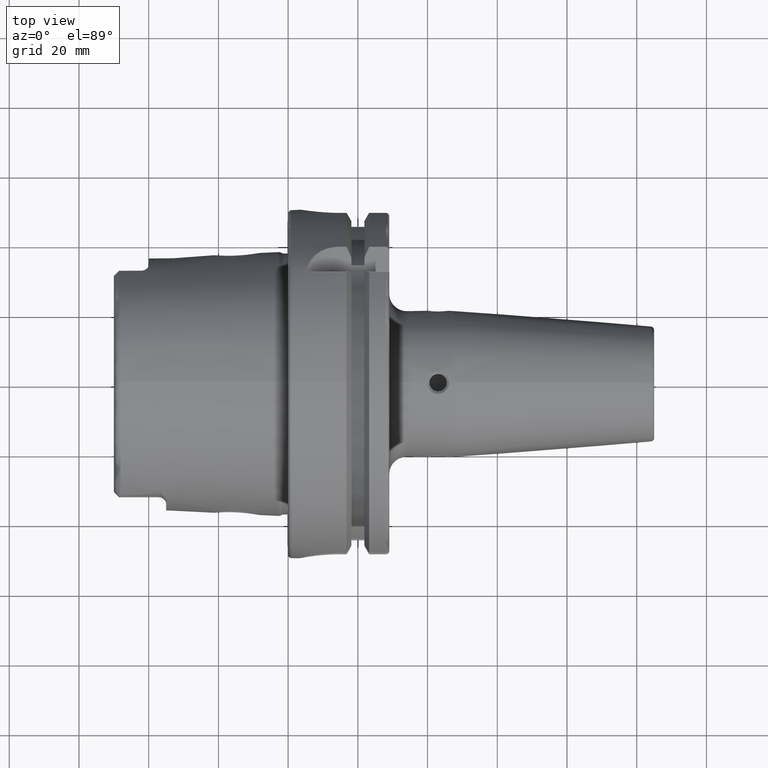
[diagram: clean part render]
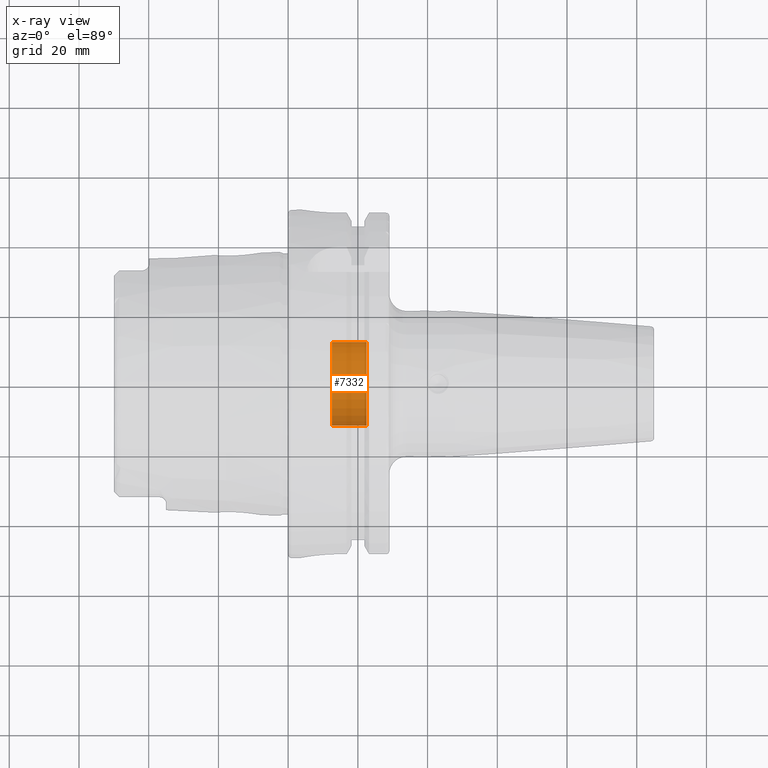
[diagram: x-ray — body ghosted, one internal face saturated and labeled with its STEP entity id]
A machine part, top view, then the same camera in x-ray: the body is ghosted and one INTERNAL B-rep face — a face not visible from any outside direction — is saturated and labeled: STEP entity #7332.
In plain terms, the highlighted cylindrical surface (partial cylindrical patch) has radius 12 mm, axis along (-1, 0, 0).
Its self-contained STEP definition (entity closure, byte-faithful):
#7281=CARTESIAN_POINT('',(1.25E1,0.E0,0.E0));
#7282=DIRECTION('',(1.E0,0.E0,0.E0));
#7283=DIRECTION('',(0.E0,-1.E0,0.E0));
#7284=AXIS2_PLACEMENT_3D('',#7281,#7282,#7283);
#7286=DIRECTION('',(-1.E0,0.E0,0.E0));
#7287=VECTOR('',#7286,1.E1);
#7288=CARTESIAN_POINT('',(2.25E1,-1.2E1,0.E0));
#7289=LINE('',#7288,#7287);
#7295=DIRECTION('',(-1.E0,0.E0,0.E0));
#7296=VECTOR('',#7295,1.E1);
#7297=CARTESIAN_POINT('',(2.25E1,1.2E1,0.E0));
#7298=LINE('',#7297,#7296);
#7304=CARTESIAN_POINT('',(2.25E1,0.E0,0.E0));
#7305=DIRECTION('',(1.E0,0.E0,0.E0));
#7306=DIRECTION('',(0.E0,-1.E0,0.E0));
#7307=AXIS2_PLACEMENT_3D('',#7304,#7305,#7306);
#7309=CARTESIAN_POINT('',(1.25E1,-1.2E1,0.E0));
#7310=CARTESIAN_POINT('',(1.25E1,1.2E1,0.E0));
#7311=VERTEX_POINT('',#7309);
#7312=VERTEX_POINT('',#7310);
#7313=CARTESIAN_POINT('',(2.25E1,1.2E1,0.E0));
#7314=VERTEX_POINT('',#7313);
#7315=CARTESIAN_POINT('',(2.25E1,-1.2E1,0.E0));
#7316=VERTEX_POINT('',#7315);
#7317=CARTESIAN_POINT('',(2.3E1,0.E0,0.E0));
#7318=DIRECTION('',(-1.E0,0.E0,0.E0));
#7319=DIRECTION('',(0.E0,1.E0,0.E0));
#7320=AXIS2_PLACEMENT_3D('',#7317,#7318,#7319);
#7321=CYLINDRICAL_SURFACE('',#7320,1.2E1);
#7323=ORIENTED_EDGE('',*,*,#7322,.T.);
#7325=ORIENTED_EDGE('',*,*,#7324,.F.);
#7327=ORIENTED_EDGE('',*,*,#7326,.F.);
#7329=ORIENTED_EDGE('',*,*,#7328,.T.);
#7330=EDGE_LOOP('',(#7323,#7325,#7327,#7329));
#7331=FACE_OUTER_BOUND('',#7330,.F.);
#7332=ADVANCED_FACE('',(#7331),#7321,.F.);
#7285=CIRCLE('',#7284,1.2E1);
#7308=CIRCLE('',#7307,1.2E1);
#7322=EDGE_CURVE('',#7311,#7312,#7285,.T.);
#7324=EDGE_CURVE('',#7314,#7312,#7298,.T.);
#7326=EDGE_CURVE('',#7316,#7314,#7308,.T.);
#7328=EDGE_CURVE('',#7316,#7311,#7289,.T.);